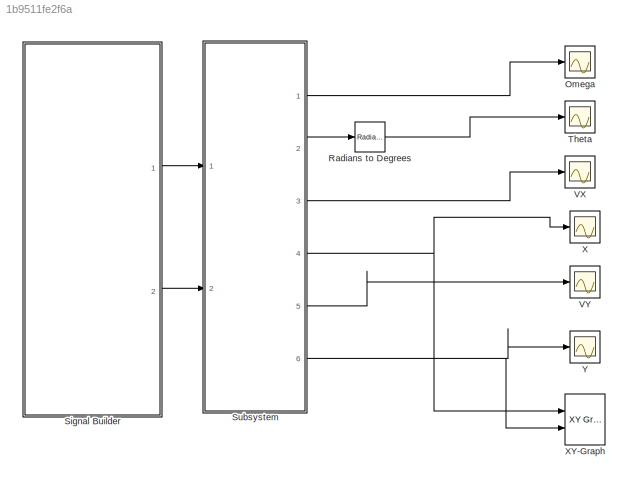
MODEL slx_1b9511fe2f6a
KIND model
CONFIG AbsTol = auto
CONFIG EnableMultiTasking = off
CONFIG FixedStep = auto
CONFIG MaxStep = auto
CONFIG MinStep = auto
CONFIG RelTol = 1e-3
CONFIG SampleTimeConstraint = Unconstrained
CONFIG SolverName = VariableStepAuto
CONFIG StartTime = 0.0
CONFIG StopTime = 210.2656
BLOCK [Scope] Omega
  Floating = off
  NumInputPorts = 1
  Ports = [1]
  ScopeSpecificationString = Simulink.scopes.TimeScopeBlockCfg('CurrentConfiguration', extmgr.ConfigurationSet(extmgr.Configuration('Core','General UI',true),extmgr.Configuration('Core','Source UI',true),extmgr.Configuration('Sources','WiredSimulink',true),extmgr.Configuration('Visuals','Time Domain',true,'SerializedDisplays',{struct('MinYLimReal','-0.03125','MaxYLimReal','0.28125','YLabelReal','','MinYLimMag','0.00000','MaxY...<+1362ch>
BLOCK [Reference] Radians to Degrees  REF=simulink_extras/Transformations/Radians
to Degrees
  Ports = [1, 1]
  SourceBlock = simulink_extras/Transformations/Radians\nto Degrees
  SourceProductBaseCode = SL
  SourceType = RadiansToDegrees
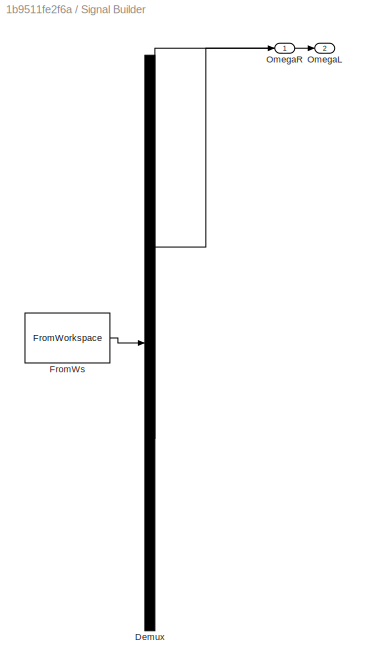
BLOCK [SubSystem] Signal Builder
  ClipboardFcn = sigbuilder_block('clipboard');
  CloseFcn = sigbuilder_block('close');
  ContinueFcn = sigbuilder_block('continue');
  CopyFcn = sigbuilder_block('copy');
  DeleteFcn = sigbuilder_block('delete');
  LoadFcn = sigbuilder_block('load');
  MaskHideContents = on
  ModelCloseFcn = sigbuilder_block('modelClose');
  NameChangeFcn = sigbuilder_block('namechange');
  OpenFcn = sigbuilder_block('open',[5.4 141.6 1141.2 444.6 ]);
  PauseFcn = sigbuilder_block('pause');
  Ports = [0, 2]
  PreSaveFcn = sigbuilder_block('preSave');
  RequestExecContextInheritance = off
  StartFcn = sigbuilder_block('start');
  StopFcn = sigbuilder_block('stop');
  Tag = STV Subsys
BLOCK [Demux] Signal Builder/Demux
  DisplayOption = none
  Outputs = 2
  Ports = [1, 2]
  Tag = STV Demux
BLOCK [FromWorkspace] Signal Builder/FromWs
  Tag = STV FromWs
  VariableName = tuvar
BLOCK [Outport] Signal Builder/OmegaL
  Port = 2
  Tag = STV Outport
BLOCK [Outport] Signal Builder/OmegaR
  Tag = STV Outport
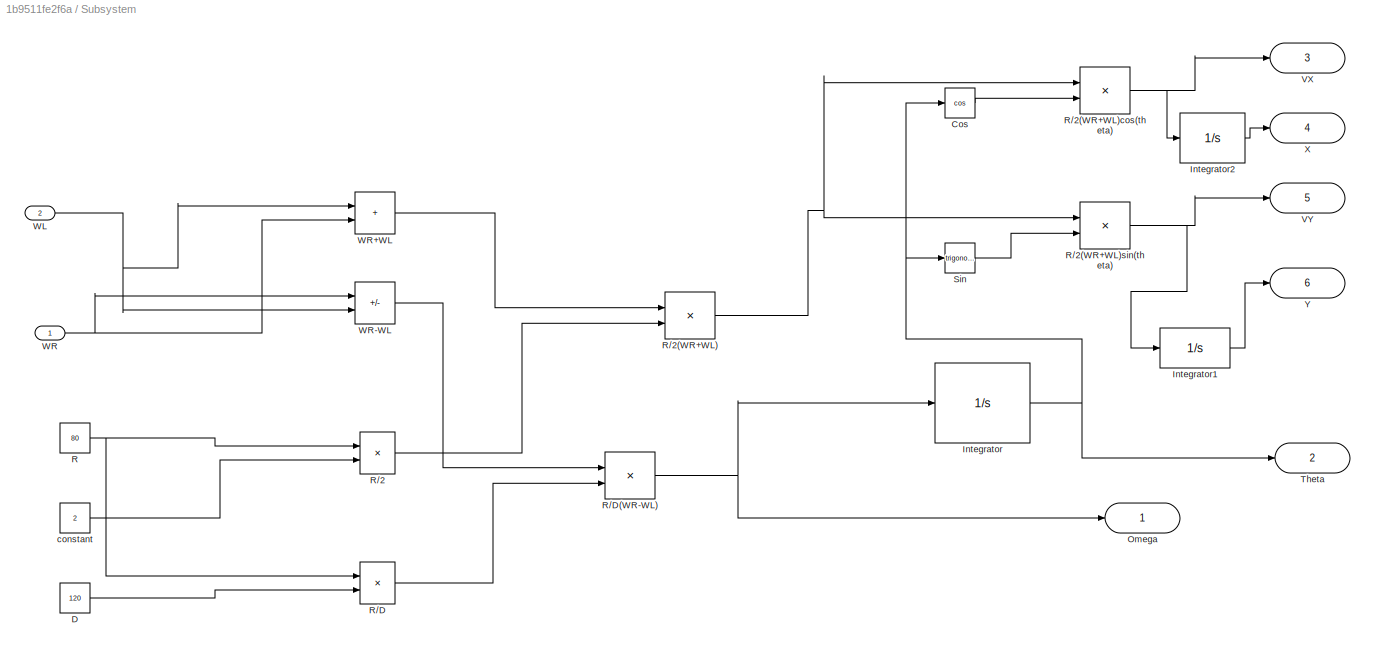
BLOCK [SubSystem] Subsystem
  Ports = [2, 6]
  RequestExecContextInheritance = off
BLOCK [Trigonometry] Subsystem/Cos
  Operator = cos
  Ports = [1, 1]
BLOCK [Constant] Subsystem/D
  Value = 120
BLOCK [Integrator] Subsystem/Integrator
  Ports = [1, 1]
BLOCK [Integrator] Subsystem/Integrator1
  Ports = [1, 1]
BLOCK [Integrator] Subsystem/Integrator2
  Ports = [1, 1]
BLOCK [Outport] Subsystem/Omega
BLOCK [Constant] Subsystem/R
  Value = 80
BLOCK [Product] Subsystem/R//2
  Inputs = */
  Ports = [2, 1]
BLOCK [Product] Subsystem/R//2(WR+WL)
  Ports = [2, 1]
BLOCK [Product] Subsystem/R//2(WR+WL)cos(theta)
  Ports = [2, 1]
BLOCK [Product] Subsystem/R//2(WR+WL)sin(theta)
  Ports = [2, 1]
BLOCK [Product] Subsystem/R//D
  Inputs = */
  Ports = [2, 1]
BLOCK [Product] Subsystem/R//D(WR-WL)
  Ports = [2, 1]
BLOCK [Trigonometry] Subsystem/Sin
  Ports = [1, 1]
BLOCK [Outport] Subsystem/Theta
  Port = 2
BLOCK [Outport] Subsystem/VX
  Port = 3
BLOCK [Outport] Subsystem/VY
  Port = 5
BLOCK [Inport] Subsystem/WL
  Port = 2
BLOCK [Inport] Subsystem/WR
BLOCK [Sum] Subsystem/WR+WL
  IconShape = rectangular
  Ports = [2, 1]
BLOCK [Sum] Subsystem/WR-WL
  IconShape = rectangular
  Inputs = +-
  Ports = [2, 1]
BLOCK [Outport] Subsystem/X
  Port = 4
BLOCK [Outport] Subsystem/Y
  Port = 6
BLOCK [Constant] Subsystem/constant
  Value = 2
BLOCK [Scope] Theta
  Floating = off
  NumInputPorts = 1
  Ports = [1]
  ScopeSpecificationString = Simulink.scopes.TimeScopeBlockCfg('CurrentConfiguration', extmgr.ConfigurationSet(extmgr.Configuration('Core','General UI',true),extmgr.Configuration('Core','Source UI',true),extmgr.Configuration('Sources','WiredSimulink',true,'DataLoggingVariableName','ScopeData1'),extmgr.Configuration('Visuals','Time Domain',true,'SerializedDisplays',{struct('MinYLimReal','-22.50005','MaxYLimReal','202.50047','Y...<+1418ch>
BLOCK [Scope] VX
  Floating = off
  NumInputPorts = 1
  Ports = [1]
  ScopeSpecificationString = Simulink.scopes.TimeScopeBlockCfg('CurrentConfiguration', extmgr.ConfigurationSet(extmgr.Configuration('Core','General UI',true),extmgr.Configuration('Core','Source UI',true),extmgr.Configuration('Sources','WiredSimulink',true,'DataLoggingVariableName','ScopeData2'),extmgr.Configuration('Visuals','Time Domain',true,'SerializedDisplays',{struct('MinYLimReal','-46.02498','MaxYLimReal','60.66944','YL...<+1680ch>
BLOCK [Scope] VY
  Floating = off
  NumInputPorts = 1
  Ports = [1]
  ScopeSpecificationString = Simulink.scopes.TimeScopeBlockCfg('CurrentConfiguration', extmgr.ConfigurationSet(extmgr.Configuration('Core','General UI',true),extmgr.Configuration('Core','Source UI',true),extmgr.Configuration('Sources','WiredSimulink',true,'DataLoggingVariableName','ScopeData4'),extmgr.Configuration('Visuals','Time Domain',true,'SerializedDisplays',{struct('MinYLimReal','-6.25','MaxYLimReal','56.25','YLabelRea...<+1386ch>
BLOCK [Scope] X
  Floating = off
  NumInputPorts = 1
  Ports = [1]
  ScopeSpecificationString = Simulink.scopes.TimeScopeBlockCfg('CurrentConfiguration', extmgr.ConfigurationSet(extmgr.Configuration('Core','General UI',true),extmgr.Configuration('Core','Source UI',true),extmgr.Configuration('Sources','WiredSimulink',true,'DataLoggingVariableName','ScopeData3'),extmgr.Configuration('Visuals','Time Domain',true,'SerializedDisplays',{struct('MinYLimReal','-106.69409','MaxYLimReal','960.24683','...<+1741ch>
BLOCK [Reference] XY-Graph  REF=simulink/Sinks/XY Graph
  Ports = [2]
  SourceBlock = simulink/Sinks/XY Graph
  SourceProductBaseCode = SL
  SourceType = XY scope.
BLOCK [Scope] Y
  Floating = off
  NumInputPorts = 1
  Ports = [1]
  ScopeSpecificationString = Simulink.scopes.TimeScopeBlockCfg('CurrentConfiguration', extmgr.ConfigurationSet(extmgr.Configuration('Core','General UI',true),extmgr.Configuration('Core','Source UI',true),extmgr.Configuration('Sources','WiredSimulink',true,'DataLoggingVariableName','ScopeData5'),extmgr.Configuration('Visuals','Time Domain',true),extmgr.Configuration('Tools','Plot Navigation',true),extmgr.Configuration('Tools',...<+40ch>
LINE Radians to Degrees:1 -> Theta:1
LINE Signal Builder:1 -> Subsystem:1
LINE Signal Builder:2 -> Subsystem:2
LINE Subsystem/Cos:1 -> Subsystem/R//2(WR+WL)cos(theta):2
LINE Subsystem/D:1 -> Subsystem/R//D:2
LINE Subsystem/Integrator1:1 -> Subsystem/Y:1
LINE Subsystem/Integrator2:1 -> Subsystem/X:1
NET Subsystem/Integrator:1 -> Subsystem/Cos:1, Subsystem/Sin:1, Subsystem/Theta:1
NET Subsystem/R//2(WR+WL):1 -> Subsystem/R//2(WR+WL)cos(theta):1, Subsystem/R//2(WR+WL)sin(theta):1
NET Subsystem/R//2(WR+WL)cos(theta):1 -> Subsystem/Integrator2:1, Subsystem/VX:1
NET Subsystem/R//2(WR+WL)sin(theta):1 -> Subsystem/Integrator1:1, Subsystem/VY:1
LINE Subsystem/R//2:1 -> Subsystem/R//2(WR+WL):2
NET Subsystem/R//D(WR-WL):1 -> Subsystem/Integrator:1, Subsystem/Omega:1
LINE Subsystem/R//D:1 -> Subsystem/R//D(WR-WL):2
NET Subsystem/R:1 -> Subsystem/R//2:1, Subsystem/R//D:1
LINE Subsystem/Sin:1 -> Subsystem/R//2(WR+WL)sin(theta):2
NET Subsystem/WL:1 -> Subsystem/WR+WL:1, Subsystem/WR-WL:2
LINE Subsystem/WR+WL:1 -> Subsystem/R//2(WR+WL):1
LINE Subsystem/WR-WL:1 -> Subsystem/R//D(WR-WL):1
NET Subsystem/WR:1 -> Subsystem/WR+WL:2, Subsystem/WR-WL:1
LINE Subsystem/constant:1 -> Subsystem/R//2:2
LINE Subsystem:1 -> Omega:1
LINE Subsystem:2 -> Radians to Degrees:1
LINE Subsystem:3 -> VX:1
NET Subsystem:4 -> X:1, XY-Graph:1
LINE Subsystem:5 -> VY:1
NET Subsystem:6 -> XY-Graph:2, Y:1
note: NET lines group one-source signal fan-out (src -> all destinations, sorted); 1:1 wires keep LINE
